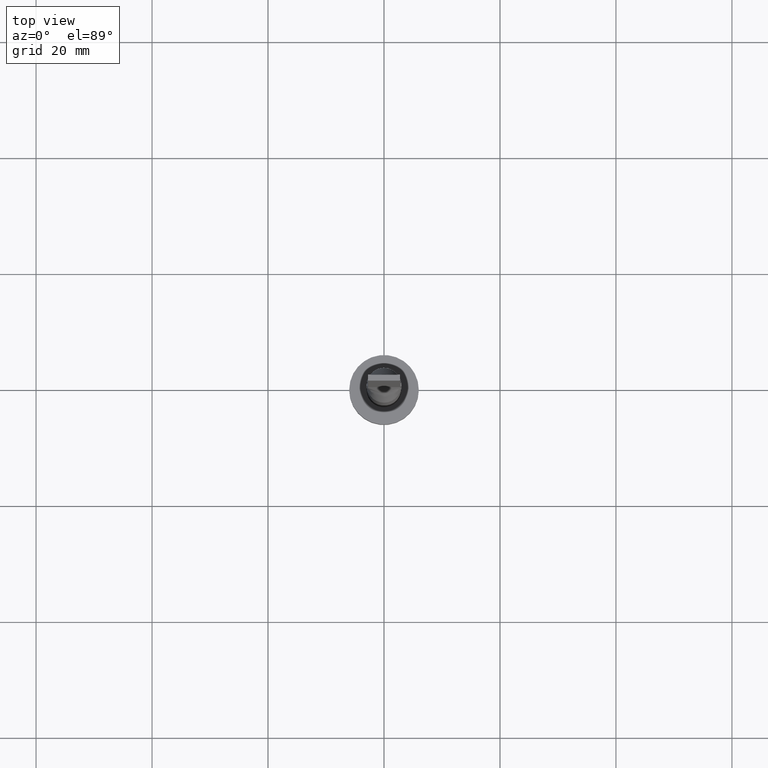
[diagram: clean part render]
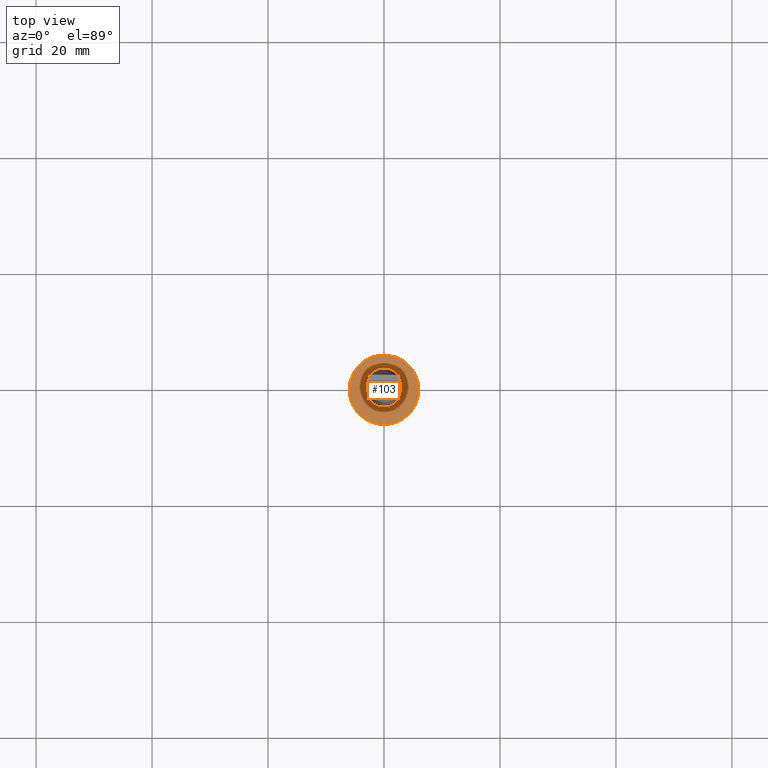
[diagram: same view with one face highlighted and labeled with its STEP entity id]
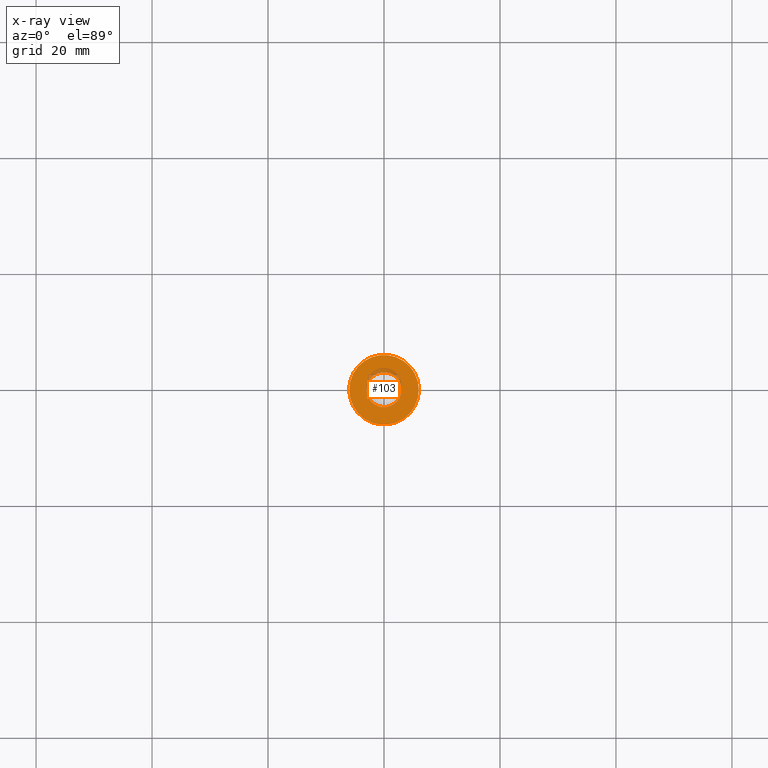
[diagram: x-ray of the same camera — body ghosted, the highlighted face saturated]
A machine part, top view. The second image highlights one B-rep face of the part: STEP entity #103.
The next image is the same camera in x-ray: the body ghosted, the highlighted face saturated — about 6% of this face is hidden behind the body in this view.
In plain terms, the highlighted planar face has unit normal (0, 0, 1).
Its self-contained STEP definition (entity closure, byte-faithful):
#10 = ORIENTED_EDGE ( 'NONE', *, *, #372, .T. ) ;
#16 = CARTESIAN_POINT ( 'NONE',  ( -3.000000000000000444, 0.000000000000000000, 5.000000000000000000 ) ) ;
#29 = CARTESIAN_POINT ( 'NONE',  ( 0.000000000000000000, 0.000000000000000000, 5.000000000000000000 ) ) ;
#38 = EDGE_CURVE ( 'NONE', #286, #57, #346, .T. ) ;
#57 = VERTEX_POINT ( 'NONE', #16 ) ;
#98 = VERTEX_POINT ( 'NONE', #238 ) ;
#103 = ADVANCED_FACE ( 'NONE', ( #326, #146 ), #152, .T. ) ;
#111 = DIRECTION ( 'NONE',  ( 1.000000000000000000, 0.000000000000000000, -0.000000000000000000 ) ) ;
#116 = CARTESIAN_POINT ( 'NONE',  ( 0.000000000000000000, 0.000000000000000000, 5.000000000000000000 ) ) ;
#146 = FACE_OUTER_BOUND ( 'NONE', #460, .T. ) ;
#149 = DIRECTION ( 'NONE',  ( 1.000000000000000000, 0.000000000000000000, 0.000000000000000000 ) ) ;
#150 = DIRECTION ( 'NONE',  ( 0.000000000000000000, 0.000000000000000000, 1.000000000000000000 ) ) ;
#152 = PLANE ( 'NONE',  #539 ) ;
#160 = DIRECTION ( 'NONE',  ( 0.000000000000000000, 0.000000000000000000, 1.000000000000000000 ) ) ;
#166 = AXIS2_PLACEMENT_3D ( 'NONE', #29, #150, #334 ) ;
#204 = AXIS2_PLACEMENT_3D ( 'NONE', #569, #160, #469 ) ;
#205 = VERTEX_POINT ( 'NONE', #285 ) ;
#219 = EDGE_LOOP ( 'NONE', ( #344, #475 ) ) ;
#238 = CARTESIAN_POINT ( 'NONE',  ( 6.000000000000000888, 7.347880794884120722E-16, 5.000000000000000000 ) ) ;
#248 = DIRECTION ( 'NONE',  ( 0.000000000000000000, 0.000000000000000000, 1.000000000000000000 ) ) ;
#274 = AXIS2_PLACEMENT_3D ( 'NONE', #116, #248, #284 ) ;
#284 = DIRECTION ( 'NONE',  ( 1.000000000000000000, 0.000000000000000000, 0.000000000000000000 ) ) ;
#285 = CARTESIAN_POINT ( 'NONE',  ( -6.000000000000000888, 0.000000000000000000, 5.000000000000000000 ) ) ;
#286 = VERTEX_POINT ( 'NONE', #305 ) ;
#305 = CARTESIAN_POINT ( 'NONE',  ( 3.000000000000000444, 3.673940397442059868E-16, 5.000000000000000000 ) ) ;
#321 = CARTESIAN_POINT ( 'NONE',  ( 0.000000000000000000, 0.000000000000000000, 5.000000000000000000 ) ) ;
#326 = FACE_BOUND ( 'NONE', #219, .T. ) ;
#334 = DIRECTION ( 'NONE',  ( 1.000000000000000000, 0.000000000000000000, 0.000000000000000000 ) ) ;
#337 = EDGE_CURVE ( 'NONE', #57, #286, #415, .T. ) ;
#344 = ORIENTED_EDGE ( 'NONE', *, *, #337, .F. ) ;
#346 = CIRCLE ( 'NONE', #375, 3.000000000000000444 ) ;
#349 = CIRCLE ( 'NONE', #166, 6.000000000000000888 ) ;
#350 = CIRCLE ( 'NONE', #274, 6.000000000000000888 ) ;
#372 = EDGE_CURVE ( 'NONE', #98, #205, #349, .T. ) ;
#375 = AXIS2_PLACEMENT_3D ( 'NONE', #470, #560, #149 ) ;
#415 = CIRCLE ( 'NONE', #204, 3.000000000000000444 ) ;
#460 = EDGE_LOOP ( 'NONE', ( #571, #10 ) ) ;
#469 = DIRECTION ( 'NONE',  ( 1.000000000000000000, 0.000000000000000000, 0.000000000000000000 ) ) ;
#470 = CARTESIAN_POINT ( 'NONE',  ( 0.000000000000000000, 0.000000000000000000, 5.000000000000000000 ) ) ;
#475 = ORIENTED_EDGE ( 'NONE', *, *, #38, .F. ) ;
#477 = EDGE_CURVE ( 'NONE', #205, #98, #350, .T. ) ;
#512 = DIRECTION ( 'NONE',  ( 0.000000000000000000, 0.000000000000000000, 1.000000000000000000 ) ) ;
#539 = AXIS2_PLACEMENT_3D ( 'NONE', #321, #512, #111 ) ;
#560 = DIRECTION ( 'NONE',  ( 0.000000000000000000, 0.000000000000000000, 1.000000000000000000 ) ) ;
#569 = CARTESIAN_POINT ( 'NONE',  ( 0.000000000000000000, 0.000000000000000000, 5.000000000000000000 ) ) ;
#571 = ORIENTED_EDGE ( 'NONE', *, *, #477, .T. ) ;